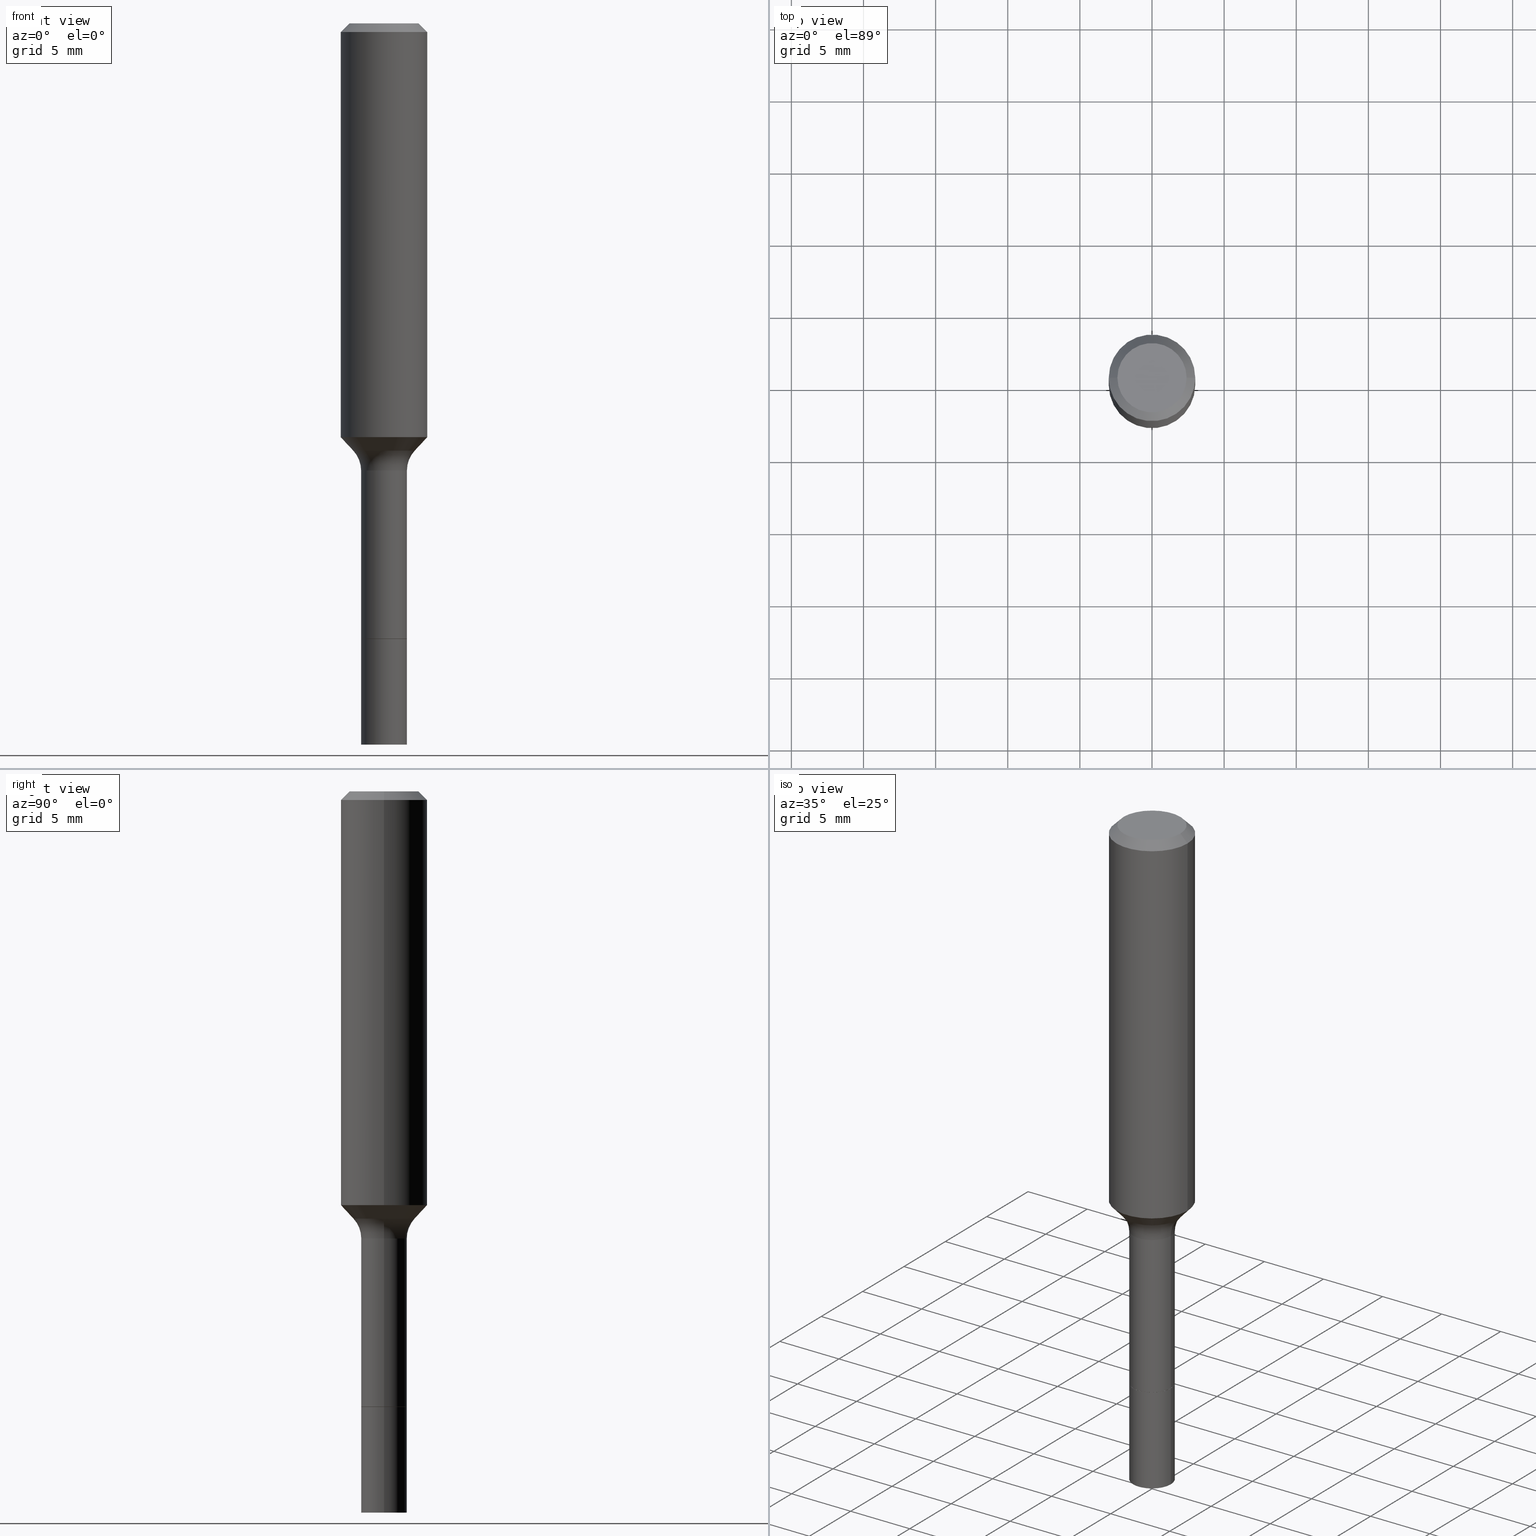
[diagram: canonical four-view strip — front | top / right | iso, engineering-drawing reading convention]
A machine part, canonical four-view strip (front | top / right | iso — engineering-drawing reading convention). The complete STEP part file that produces these views, byte-faithful:
ISO-10303-21;
HEADER;
FILE_DESCRIPTION (( 'STEP AP203' ),
    '1' );
FILE_NAME ('58488.STEP',
    '2025-04-01T15:23:31',
    ( '' ),
    ( '' ),
    'SwSTEP 2.0',
    'SolidWorks 2024',
    '' );
FILE_SCHEMA (( 'CONFIG_CONTROL_DESIGN' ));
ENDSEC;

DATA;
#1 = COORDINATED_UNIVERSAL_TIME_OFFSET ( 5, 0, .BEHIND. ) ;
#2 = VERTEX_POINT ( 'NONE', #5 ) ;
#3 = CIRCLE ( 'NONE', #434, 0.1180999999999999966 ) ;
#4 =( NAMED_UNIT ( * ) SI_UNIT ( $, .STERADIAN. ) SOLID_ANGLE_UNIT ( ) );
#5 = CARTESIAN_POINT ( 'NONE',  ( -0.06249999999999993755, -4.617685861137787747E-15, -1.220499999999999918 ) ) ;
#6 = APPROVAL_ROLE ( '' ) ;
#7 = CARTESIAN_POINT ( 'NONE',  ( 0.09447999999999998066, -7.704367267948738690E-16, -3.085620075131172158E-17 ) ) ;
#8 = DIRECTION ( 'NONE',  ( -2.445468806185136597E-29, 3.491481338843145583E-15, 1.000000000000000000 ) ) ;
#9 = ORIENTED_EDGE ( 'NONE', *, *, #430, .F. ) ;
#10 = ADVANCED_FACE ( 'NONE', ( #165 ), #402, .F. ) ;
#11 = CIRCLE ( 'NONE', #372, 0.07999999999999993228 ) ;
#12 = CIRCLE ( 'NONE', #496, 0.09447999999999998066 ) ;
#13 = DIRECTION ( 'NONE',  ( 0.7071067811865460184, -7.319954787623251312E-15, -0.7071067811865490160 ) ) ;
#14 = APPROVAL ( #481, 'UNSPECIFIED' ) ;
#15 = LINE ( 'NONE', #261, #397 ) ;
#16 = ADVANCED_FACE ( 'NONE', ( #247 ), #329, .T. ) ;
#17 = DIRECTION ( 'NONE',  ( -2.445468806185136597E-29, 3.491481338843145583E-15, 1.000000000000000000 ) ) ;
#18 = AXIS2_PLACEMENT_3D ( 'NONE', #362, #289, #367 ) ;
#19 = FACE_OUTER_BOUND ( 'NONE', #62, .T. ) ;
#20 = DIRECTION ( 'NONE',  ( 2.438088387897960049E-29, -3.491481338843145188E-15, -1.000000000000000000 ) ) ;
#21 = VERTEX_POINT ( 'NONE', #37 ) ;
#22 = ORIENTED_EDGE ( 'NONE', *, *, #59, .F. ) ;
#23 = EDGE_CURVE ( 'NONE', #445, #257, #469, .T. ) ;
#24 = CARTESIAN_POINT ( 'NONE',  ( 4.107164859987937107E-29, -5.863942908587062413E-15, -1.679499999999999993 ) ) ;
#25 = VECTOR ( 'NONE', #13, 39.37007874015748143 ) ;
#26 = EDGE_LOOP ( 'NONE', ( #466, #268 ) ) ;
#27 = CIRCLE ( 'NONE', #141, 0.06250000000000000000 ) ;
#28 = CC_DESIGN_PERSON_AND_ORGANIZATION_ASSIGNMENT ( #72, #201, ( #355 ) ) ;
#29 = ORIENTED_EDGE ( 'NONE', *, *, #137, .T. ) ;
#30 = ADVANCED_FACE ( 'NONE', ( #129 ), #324, .T. ) ;
#31 = DIRECTION ( 'NONE',  ( 1.000000000000000000, -6.982962677686268288E-15, 0.000000000000000000 ) ) ;
#32 = VERTEX_POINT ( 'NONE', #206 ) ;
#33 = EDGE_LOOP ( 'NONE', ( #9, #344, #193, #399 ) ) ;
#34 = CIRCLE ( 'NONE', #274, 0.06199999999999999956 ) ;
#35 = DIRECTION ( 'NONE',  ( -2.445468806185136597E-29, 3.491481338843145583E-15, 1.000000000000000000 ) ) ;
#36 = APPLICATION_PROTOCOL_DEFINITION ( 'international standard', 'config_control_design', 1994, #321 ) ;
#37 = CARTESIAN_POINT ( 'NONE',  ( 0.06250000000000000000, -6.300378075942454082E-15, -1.679499999999999993 ) ) ;
#38 = DATE_TIME_ROLE ( 'creation_date' ) ;
#39 = DIRECTION ( 'NONE',  ( -2.445468806185136597E-29, 3.491481338843145583E-15, 1.000000000000000000 ) ) ;
#40 = EDGE_CURVE ( 'NONE', #504, #225, #359, .T. ) ;
#41 = CARTESIAN_POINT ( 'NONE',  ( 0.06250000000000012490, -7.309416182868124954E-15, -1.968500000000000139 ) ) ;
#42 = ORIENTED_EDGE ( 'NONE', *, *, #398, .F. ) ;
#43 = CONICAL_SURFACE ( 'NONE', #168, 0.06199999999999999956, 0.7853981633975507526 ) ;
#44 =( GEOMETRIC_REPRESENTATION_CONTEXT ( 3 ) GLOBAL_UNCERTAINTY_ASSIGNED_CONTEXT ( ( #499 ) ) GLOBAL_UNIT_ASSIGNED_CONTEXT ( ( #80, #364, #4 ) ) REPRESENTATION_CONTEXT ( 'NONE', 'WORKASPACE' ) );
#45 = PERSON_AND_ORGANIZATION ( #425, #176 ) ;
#46 = CARTESIAN_POINT ( 'NONE',  ( 0.06199999999999999956, -6.296886594603611075E-15, -1.679499999999999993 ) ) ;
#47 = ADVANCED_FACE ( 'NONE', ( #483 ), #171, .T. ) ;
#48 = CYLINDRICAL_SURFACE ( 'NONE', #140, 0.06250000000000005551 ) ;
#49 = CARTESIAN_POINT ( 'NONE',  ( -0.1424999999999999600, -3.248829575599916941E-15, -1.220499999999999918 ) ) ;
#50 = ORIENTED_EDGE ( 'NONE', *, *, #234, .F. ) ;
#51 = CIRCLE ( 'NONE', #109, 0.08399170387046661634 ) ;
#52 = LINE ( 'NONE', #217, #449 ) ;
#53 = ADVANCED_FACE ( 'NONE', ( #485 ), #48, .T. ) ;
#54 = CARTESIAN_POINT ( 'NONE',  ( 0.06199999999999999956, -6.296886594603611075E-15, -1.679499999999999993 ) ) ;
#55 = DIRECTION ( 'NONE',  ( 1.000000000000000000, -6.982962677686269866E-15, 0.000000000000000000 ) ) ;
#56 = CIRCLE ( 'NONE', #252, 0.06249999999999993755 ) ;
#57 = DIRECTION ( 'NONE',  ( -1.000000000000000000, 6.982962677686266711E-15, 0.000000000000000000 ) ) ;
#58 = DIRECTION ( 'NONE',  ( 1.000000000000000000, -6.982962677686262766E-15, 0.000000000000000000 ) ) ;
#59 = EDGE_CURVE ( 'NONE', #271, #257, #405, .T. ) ;
#60 = EDGE_LOOP ( 'NONE', ( #353, #436, #273, #420 ) ) ;
#61 = DIRECTION ( 'NONE',  ( -2.445468806185136597E-29, 3.491481338843145583E-15, 1.000000000000000000 ) ) ;
#62 = EDGE_LOOP ( 'NONE', ( #357, #462, #302, #417 ) ) ;
#63 = AXIS2_PLACEMENT_3D ( 'NONE', #413, #299, #222 ) ;
#64 = ORIENTED_EDGE ( 'NONE', *, *, #127, .F. ) ;
#65 = PRODUCT_DEFINITION_FORMATION_WITH_SPECIFIED_SOURCE ( 'ANY', '', #216, .NOT_KNOWN. ) ;
#66 = EDGE_CURVE ( 'NONE', #225, #422, #371, .T. ) ;
#67 = FACE_OUTER_BOUND ( 'NONE', #280, .T. ) ;
#68 = VERTEX_POINT ( 'NONE', #7 ) ;
#69 = FACE_OUTER_BOUND ( 'NONE', #391, .T. ) ;
#70 = ORIENTED_EDGE ( 'NONE', *, *, #66, .F. ) ;
#71 = PERSON_AND_ORGANIZATION_ROLE ( 'classification_officer' ) ;
#72 = PERSON_AND_ORGANIZATION ( #425, #176 ) ;
#73 = CARTESIAN_POINT ( 'NONE',  ( -0.06199999999999999956, -5.420757185241689494E-15, -1.679499999999999993 ) ) ;
#74 = CONICAL_SURFACE ( 'NONE', #327, 0.08399170387046661634, 0.7504915783575603072 ) ;
#75 = LOCAL_TIME ( 11, 23, 31.00000000000000000, #361 ) ;
#76 = DIMENSIONAL_EXPONENTS ( 1.000000000000000000, 0.000000000000000000, 0.000000000000000000, 0.000000000000000000, 0.000000000000000000, 0.000000000000000000, 0.000000000000000000 ) ;
#77 = FACE_OUTER_BOUND ( 'NONE', #381, .T. ) ;
#78 = ADVANCED_FACE ( 'NONE', ( #172 ), #238, .T. ) ;
#79 = DIRECTION ( 'NONE',  ( 1.000000000000000000, -6.982962677686266711E-15, 4.876176775795936353E-29 ) ) ;
#80 =( CONVERSION_BASED_UNIT ( 'INCH', #368 ) LENGTH_UNIT ( ) NAMED_UNIT ( #76 ) );
#81 = CARTESIAN_POINT ( 'NONE',  ( 4.107164859987937107E-29, -5.863942908587062413E-15, -1.679499999999999993 ) ) ;
#82 = CALENDAR_DATE ( 2025, 1, 4 ) ;
#83 = PLANE ( 'NONE',  #121 ) ;
#84 = CARTESIAN_POINT ( 'NONE',  ( 4.107164859987937107E-29, -5.863942908587062413E-15, -1.679499999999999993 ) ) ;
#85 = ORIENTED_EDGE ( 'NONE', *, *, #518, .F. ) ;
#86 = CALENDAR_DATE ( 2025, 1, 4 ) ;
#87 = LOCAL_TIME ( 11, 23, 31.00000000000000000, #322 ) ;
#88 = CARTESIAN_POINT ( 'NONE',  ( 4.107164859987937107E-29, -5.863942908587062413E-15, -1.679499999999999993 ) ) ;
#89 = DIRECTION ( 'NONE',  ( -2.445468806185136597E-29, 3.491481338843145583E-15, 1.000000000000000000 ) ) ;
#90 = EDGE_CURVE ( 'NONE', #422, #21, #102, .T. ) ;
#91 = AXIS2_PLACEMENT_3D ( 'NONE', #177, #408, #343 ) ;
#92 = AXIS2_PLACEMENT_3D ( 'NONE', #404, #35, #152 ) ;
#93 = CARTESIAN_POINT ( 'NONE',  ( -0.09447999999999998066, 7.009847083995354710E-16, -3.085620075132147757E-17 ) ) ;
#94 = VERTEX_POINT ( 'NONE', #73 ) ;
#95 = CC_DESIGN_APPROVAL ( #264, ( #65 ) ) ;
#96 = CARTESIAN_POINT ( 'NONE',  ( 0.1180999999999999966, -9.071566814582237199E-16, -0.02362000000000014435 ) ) ;
#97 = ORIENTED_EDGE ( 'NONE', *, *, #66, .T. ) ;
#98 = FACE_OUTER_BOUND ( 'NONE', #311, .T. ) ;
#99 = EDGE_LOOP ( 'NONE', ( #426, #188, #143, #22 ) ) ;
#100 = EDGE_CURVE ( 'NONE', #21, #422, #303, .T. ) ;
#101 = AXIS2_PLACEMENT_3D ( 'NONE', #331, #126, #439 ) ;
#102 = CIRCLE ( 'NONE', #259, 0.06250000000000000000 ) ;
#103 = DIRECTION ( 'NONE',  ( 0.6819983600624974773, -2.208861293262464364E-15, 0.7313537016191714590 ) ) ;
#104 = ORIENTED_EDGE ( 'NONE', *, *, #117, .T. ) ;
#105 = DIRECTION ( 'NONE',  ( 1.000000000000000000, -6.982962677686270655E-15, 0.000000000000000000 ) ) ;
#106 = ORIENTED_EDGE ( 'NONE', *, *, #40, .T. ) ;
#107 = VERTEX_POINT ( 'NONE', #363 ) ;
#108 = DIRECTION ( 'NONE',  ( -0.7071067811865460184, 2.468850131082241283E-15, -0.7071067811865490160 ) ) ;
#109 = AXIS2_PLACEMENT_3D ( 'NONE', #352, #156, #31 ) ;
#110 = ORIENTED_EDGE ( 'NONE', *, *, #419, .F. ) ;
#111 = CC_DESIGN_PERSON_AND_ORGANIZATION_ASSIGNMENT ( #122, #71, ( #144 ) ) ;
#112 = DIRECTION ( 'NONE',  ( -2.445468806185136597E-29, 3.491481338843145583E-15, 1.000000000000000000 ) ) ;
#113 = ORIENTED_EDGE ( 'NONE', *, *, #278, .T. ) ;
#114 = LOCAL_TIME ( 11, 23, 31.00000000000000000, #437 ) ;
#115 = PERSON_AND_ORGANIZATION_ROLE ( 'design_supplier' ) ;
#116 = DIRECTION ( 'NONE',  ( -1.000000000000000000, 6.982962677686266711E-15, 0.000000000000000000 ) ) ;
#117 = EDGE_CURVE ( 'NONE', #445, #2, #167, .T. ) ;
#118 = CALENDAR_DATE ( 2025, 1, 4 ) ;
#119 = DIRECTION ( 'NONE',  ( 0.7071067811866199593, -2.468850131083015945E-15, 0.7071067811864750752 ) ) ;
#120 = AXIS2_PLACEMENT_3D ( 'NONE', #49, #497, #490 ) ;
#121 = AXIS2_PLACEMENT_3D ( 'NONE', #472, #253, #281 ) ;
#122 = PERSON_AND_ORGANIZATION ( #425, #176 ) ;
#123 = MANIFOLD_SOLID_BREP ( 'Body-Move/Copy2[2]', #356 ) ;
#124 = LINE ( 'NONE', #250, #387 ) ;
#125 = DIRECTION ( 'NONE',  ( -2.445468806185136597E-29, 3.491481338843145583E-15, 1.000000000000000000 ) ) ;
#126 = DIRECTION ( 'NONE',  ( -2.445468806185136597E-29, 3.491481338843145583E-15, 1.000000000000000000 ) ) ;
#127 = EDGE_CURVE ( 'NONE', #107, #32, #416, .T. ) ;
#128 = DIRECTION ( 'NONE',  ( 1.000000000000000000, -6.982962677686266711E-15, 4.876176775795935793E-29 ) ) ;
#129 = FACE_OUTER_BOUND ( 'NONE', #227, .T. ) ;
#130 = CC_DESIGN_PERSON_AND_ORGANIZATION_ASSIGNMENT ( #330, #441, ( #216 ) ) ;
#131 = AXIS2_PLACEMENT_3D ( 'NONE', #480, #210, #79 ) ;
#132 = APPROVAL_STATUS ( 'not_yet_approved' ) ;
#133 = DIRECTION ( 'NONE',  ( 1.000000000000000000, -6.982962677686269077E-15, 4.883557194083114022E-29 ) ) ;
#134 = CARTESIAN_POINT ( 'NONE',  ( 4.813905344975441835E-29, -6.872981015512731707E-15, -1.968500000000000139 ) ) ;
#135 = EDGE_LOOP ( 'NONE', ( #360, #104, #471, #190 ) ) ;
#136 = PRODUCT_DEFINITION_SHAPE ( 'NONE', 'NONE',  #355 ) ;
#137 = EDGE_CURVE ( 'NONE', #225, #504, #294, .T. ) ;
#138 = DIRECTION ( 'NONE',  ( -2.445468806185136597E-29, 3.491481338843145583E-15, 1.000000000000000000 ) ) ;
#139 = VERTEX_POINT ( 'NONE', #96 ) ;
#140 = AXIS2_PLACEMENT_3D ( 'NONE', #442, #212, #251 ) ;
#141 = AXIS2_PLACEMENT_3D ( 'NONE', #158, #112, #58 ) ;
#142 = CARTESIAN_POINT ( 'NONE',  ( -0.06249999999999996531, 4.440892098500623697E-16, -3.074334431409314362E-30 ) ) ;
#143 = ORIENTED_EDGE ( 'NONE', *, *, #440, .F. ) ;
#144 = SECURITY_CLASSIFICATION ( '', '', #161 ) ;
#145 = DIRECTION ( 'NONE',  ( 1.000000000000000000, -6.982962677686270655E-15, 0.000000000000000000 ) ) ;
#146 = CARTESIAN_POINT ( 'NONE',  ( 2.761823116367642009E-29, -3.943151451204084867E-15, -1.129363461673432267 ) ) ;
#147 = ORIENTED_EDGE ( 'NONE', *, *, #315, .T. ) ;
#148 = CC_DESIGN_DATE_AND_TIME_ASSIGNMENT ( #435, #38, ( #355 ) ) ;
#149 = AXIS2_PLACEMENT_3D ( 'NONE', #443, #326, #173 ) ;
#150 = DIRECTION ( 'NONE',  ( 1.000000000000000000, -6.982962677686269077E-15, 4.883557194083114022E-29 ) ) ;
#151 = ORIENTED_EDGE ( 'NONE', *, *, #228, .F. ) ;
#152 = DIRECTION ( 'NONE',  ( 1.000000000000000000, -6.982962677686268288E-15, 0.000000000000000000 ) ) ;
#153 = EDGE_CURVE ( 'NONE', #384, #429, #175, .T. ) ;
#154 = LINE ( 'NONE', #347, #286 ) ;
#155 = ORIENTED_EDGE ( 'NONE', *, *, #234, .T. ) ;
#156 = DIRECTION ( 'NONE',  ( -2.445468806185136597E-29, 3.491481338843145583E-15, 1.000000000000000000 ) ) ;
#157 = ORIENTED_EDGE ( 'NONE', *, *, #40, .F. ) ;
#158 = CARTESIAN_POINT ( 'NONE',  ( 4.105942125584844306E-29, -5.862197167917641698E-15, -1.679000000000000048 ) ) ;
#159 = CIRCLE ( 'NONE', #341, 0.1180999999999999966 ) ;
#160 = ORIENTED_EDGE ( 'NONE', *, *, #512, .T. ) ;
#161 = SECURITY_CLASSIFICATION_LEVEL ( 'unclassified' ) ;
#162 = EDGE_LOOP ( 'NONE', ( #375, #348, #346, #350 ) ) ;
#163 = CC_DESIGN_APPROVAL ( #14, ( #144 ) ) ;
#164 = EDGE_CURVE ( 'NONE', #68, #139, #258, .T. ) ;
#165 = FACE_OUTER_BOUND ( 'NONE', #510, .T. ) ;
#166 = DIRECTION ( 'NONE',  ( 1.000000000000000000, 0.000000000000000000, 0.000000000000000000 ) ) ;
#167 = LINE ( 'NONE', #142, #444 ) ;
#168 = AXIS2_PLACEMENT_3D ( 'NONE', #88, #305, #145 ) ;
#169 = APPROVAL_DATE_TIME ( #296, #264 ) ;
#170 = ADVANCED_FACE ( 'NONE', ( #19 ), #221, .F. ) ;
#171 = CYLINDRICAL_SURFACE ( 'NONE', #101, 0.06249999999999996531 ) ;
#172 = FACE_OUTER_BOUND ( 'NONE', #60, .T. ) ;
#173 = DIRECTION ( 'NONE',  ( 1.000000000000000000, -6.982962677686269866E-15, 0.000000000000000000 ) ) ;
#174 = CARTESIAN_POINT ( 'NONE',  ( 5.776197320209328408E-31, -8.246878922347560526E-17, -0.02362000000000014435 ) ) ;
#175 = CIRCLE ( 'NONE', #63, 0.1181000000000001354 ) ;
#176 = ORGANIZATION ( 'UNSPECIFIED', 'UNSPECIFIED', '' ) ;
#177 = CARTESIAN_POINT ( 'NONE',  ( 4.107164859987937107E-29, -5.863942908587062413E-15, -1.679499999999999993 ) ) ;
#178 = ADVANCED_FACE ( 'NONE', ( #378 ), #448, .F. ) ;
#179 = CC_DESIGN_SECURITY_CLASSIFICATION ( #144, ( #65 ) ) ;
#180 = FACE_OUTER_BOUND ( 'NONE', #162, .T. ) ;
#181 = PRODUCT_RELATED_PRODUCT_CATEGORY ( 'detail', '', ( #216 ) ) ;
#182 = CARTESIAN_POINT ( 'NONE',  ( 0.06250000000000000000, -6.298632335273033367E-15, -1.679000000000000048 ) ) ;
#183 = AXIS2_PLACEMENT_3D ( 'NONE', #189, #61, #230 ) ;
#184 = DIRECTION ( 'NONE',  ( -2.445468806185136597E-29, 3.491481338843145583E-15, 1.000000000000000000 ) ) ;
#185 = ADVANCED_FACE ( 'NONE', ( #180 ), #74, .T. ) ;
#186 = ORIENTED_EDGE ( 'NONE', *, *, #117, .F. ) ;
#187 = DIRECTION ( 'NONE',  ( -2.445468806185136597E-29, 3.491481338843145583E-15, 1.000000000000000000 ) ) ;
#188 = ORIENTED_EDGE ( 'NONE', *, *, #430, .T. ) ;
#189 = CARTESIAN_POINT ( 'NONE',  ( 0.000000000000000000, 0.000000000000000000, 0.000000000000000000 ) ) ;
#190 = ORIENTED_EDGE ( 'NONE', *, *, #495, .F. ) ;
#191 = AXIS2_PLACEMENT_3D ( 'NONE', #450, #20, #340 ) ;
#192 = CARTESIAN_POINT ( 'NONE',  ( 0.1181000000000001354, -4.767839343438834707E-15, -1.129363461673432267 ) ) ;
#193 = ORIENTED_EDGE ( 'NONE', *, *, #59, .T. ) ;
#194 = PLANE ( 'NONE',  #385 ) ;
#195 = ORIENTED_EDGE ( 'NONE', *, *, #90, .F. ) ;
#196 = CYLINDRICAL_SURFACE ( 'NONE', #183, 0.1181000000000000660 ) ;
#197 = ORIENTED_EDGE ( 'NONE', *, *, #137, .F. ) ;
#198 = VECTOR ( 'NONE', #119, 39.37007874015748143 ) ;
#199 = EDGE_CURVE ( 'NONE', #94, #271, #266, .T. ) ;
#200 = ORIENTED_EDGE ( 'NONE', *, *, #153, .T. ) ;
#201 = PERSON_AND_ORGANIZATION_ROLE ( 'creator' ) ;
#202 = DIRECTION ( 'NONE',  ( 1.000000000000000000, -6.982962677686262766E-15, 0.000000000000000000 ) ) ;
#203 = CARTESIAN_POINT ( 'NONE',  ( 7.545787641473140628E-46, -1.077338491108201769E-31, -3.085620075131671975E-17 ) ) ;
#204 = DIRECTION ( 'NONE',  ( 1.000000000000000000, -6.982962677686262766E-15, 0.000000000000000000 ) ) ;
#205 = CARTESIAN_POINT ( 'NONE',  ( 0.000000000000000000, 0.000000000000000000, 0.000000000000000000 ) ) ;
#206 = CARTESIAN_POINT ( 'NONE',  ( -0.08399170387046649144, -3.474061259782937489E-15, -1.165940131195000173 ) ) ;
#207 = AXIS2_PLACEMENT_3D ( 'NONE', #134, #89, #453 ) ;
#208 = VECTOR ( 'NONE', #108, 39.37007874015748143 ) ;
#209 = APPROVAL_STATUS ( 'not_yet_approved' ) ;
#210 = DIRECTION ( 'NONE',  ( -2.445468806185136597E-29, 3.491481338843145583E-15, 1.000000000000000000 ) ) ;
#211 = DIRECTION ( 'NONE',  ( 0.000000000000000000, 0.000000000000000000, 1.000000000000000000 ) ) ;
#212 = DIRECTION ( 'NONE',  ( -2.445468806185136597E-29, 3.491481338843145583E-15, 1.000000000000000000 ) ) ;
#213 = DIRECTION ( 'NONE',  ( -2.445468806185136877E-29, 3.491481338843145188E-15, 1.000000000000000000 ) ) ;
#214 = VERTEX_POINT ( 'NONE', #336 ) ;
#215 = AXIS2_PLACEMENT_3D ( 'NONE', #174, #332, #116 ) ;
#216 = PRODUCT ( '58488', '58488', '', ( #401 ) ) ;
#217 = CARTESIAN_POINT ( 'NONE',  ( 0.1181000000000000660, -8.246878922347485584E-16, 5.758764772215003944E-30 ) ) ;
#218 = CC_DESIGN_DATE_AND_TIME_ASSIGNMENT ( #358, #283, ( #144 ) ) ;
#219 = CARTESIAN_POINT ( 'NONE',  ( 5.776197320209328408E-31, -8.246878922347560526E-17, -0.02362000000000014435 ) ) ;
#220 = LINE ( 'NONE', #306, #285 ) ;
#221 = TOROIDAL_SURFACE ( 'NONE', #493, 0.1424999999999999600, 0.07999999999999993228 ) ;
#222 = DIRECTION ( 'NONE',  ( 1.000000000000000000, -6.982962677686269077E-15, 0.000000000000000000 ) ) ;
#223 = ORIENTED_EDGE ( 'NONE', *, *, #255, .F. ) ;
#224 = CARTESIAN_POINT ( 'NONE',  ( 0.1424999999999999600, -5.256425155628351561E-15, -1.220499999999999918 ) ) ;
#225 = VERTEX_POINT ( 'NONE', #297 ) ;
#226 = FACE_OUTER_BOUND ( 'NONE', #33, .T. ) ;
#227 = EDGE_LOOP ( 'NONE', ( #382, #513, #389, #50 ) ) ;
#228 = EDGE_CURVE ( 'NONE', #32, #2, #503, .T. ) ;
#229 = AXIS2_PLACEMENT_3D ( 'NONE', #146, #276, #310 ) ;
#230 = DIRECTION ( 'NONE',  ( 1.000000000000000000, -6.982962677686266711E-15, 4.876176775795936353E-29 ) ) ;
#231 = EDGE_LOOP ( 'NONE', ( #106, #97, #409, #316 ) ) ;
#232 = CARTESIAN_POINT ( 'NONE',  ( 4.107164859987937107E-29, -5.863942908587062413E-15, -1.679499999999999993 ) ) ;
#233 = ORIENTED_EDGE ( 'NONE', *, *, #244, .T. ) ;
#234 = EDGE_CURVE ( 'NONE', #429, #139, #52, .T. ) ;
#235 = CARTESIAN_POINT ( 'NONE',  ( 5.776197320209328408E-31, -8.246878922347560526E-17, -0.02362000000000014435 ) ) ;
#236 = ORIENTED_EDGE ( 'NONE', *, *, #100, .T. ) ;
#237 = PERSON_AND_ORGANIZATION ( #425, #176 ) ;
#238 = CONICAL_SURFACE ( 'NONE', #215, 0.1180999999999999966, 0.7853981633974461696 ) ;
#239 = CIRCLE ( 'NONE', #149, 0.06249999999999993755 ) ;
#240 = DIRECTION ( 'NONE',  ( -2.445468806185136597E-29, 3.491481338843145583E-15, 1.000000000000000000 ) ) ;
#241 = CLOSED_SHELL ( 'NONE', ( #53, #489, #16, #325 ) ) ;
#242 = APPROVAL_ROLE ( '' ) ;
#243 = EDGE_LOOP ( 'NONE', ( #70, #29, #113, #195 ) ) ;
#244 = EDGE_CURVE ( 'NONE', #32, #384, #15, .T. ) ;
#245 = SHAPE_DEFINITION_REPRESENTATION ( #136, #291 ) ;
#246 = CARTESIAN_POINT ( 'NONE',  ( 0.000000000000000000, 0.000000000000000000, 0.000000000000000000 ) ) ;
#247 = FACE_OUTER_BOUND ( 'NONE', #243, .T. ) ;
#248 = CC_DESIGN_PERSON_AND_ORGANIZATION_ASSIGNMENT ( #514, #115, ( #65 ) ) ;
#249 = DATE_AND_TIME ( #317, #114 ) ;
#250 = CARTESIAN_POINT ( 'NONE',  ( 0.06249999999999996531, -4.364351673553914229E-16, 3.047610484872458119E-30 ) ) ;
#251 = DIRECTION ( 'NONE',  ( 1.000000000000000000, -6.982962677686272233E-15, 0.000000000000000000 ) ) ;
#252 = AXIS2_PLACEMENT_3D ( 'NONE', #265, #138, #55 ) ;
#253 = DIRECTION ( 'NONE',  ( 2.438088387897960049E-29, -3.491481338843145188E-15, -1.000000000000000000 ) ) ;
#254 = DIRECTION ( 'NONE',  ( 1.000000000000000000, -6.982962677686265922E-15, 4.876176775795935793E-29 ) ) ;
#255 = EDGE_CURVE ( 'NONE', #384, #515, #494, .T. ) ;
#256 = DIRECTION ( 'NONE',  ( 1.000000000000000000, -6.982962677686268288E-15, 0.000000000000000000 ) ) ;
#257 = VERTEX_POINT ( 'NONE', #182 ) ;
#258 = LINE ( 'NONE', #455, #25 ) ;
#259 = AXIS2_PLACEMENT_3D ( 'NONE', #282, #287, #432 ) ;
#260 = LOCAL_TIME ( 11, 23, 31.00000000000000000, #1 ) ;
#261 = CARTESIAN_POINT ( 'NONE',  ( -0.08399170387046661634, -3.474061259782936306E-15, -1.165940131195000173 ) ) ;
#262 = ADVANCED_FACE ( 'NONE', ( #492 ), #43, .T. ) ;
#263 = ORIENTED_EDGE ( 'NONE', *, *, #199, .F. ) ;
#264 = APPROVAL ( #132, 'UNSPECIFIED' ) ;
#265 = CARTESIAN_POINT ( 'NONE',  ( 2.984694677948959472E-29, -4.261352974058059028E-15, -1.220499999999999918 ) ) ;
#266 = CIRCLE ( 'NONE', #91, 0.06199999999999999956 ) ;
#267 = CARTESIAN_POINT ( 'NONE',  ( -0.06250000000000000000, -5.924372752199834838E-15, -1.679499999999999993 ) ) ;
#268 = ORIENTED_EDGE ( 'NONE', *, *, #518, .T. ) ;
#269 = DIRECTION ( 'NONE',  ( 1.000000000000000000, -6.982962677686266711E-15, 0.000000000000000000 ) ) ;
#270 = EDGE_CURVE ( 'NONE', #2, #214, #56, .T. ) ;
#271 = VERTEX_POINT ( 'NONE', #54 ) ;
#272 = DIRECTION ( 'NONE',  ( 1.000000000000000000, -6.982962677686267499E-15, 4.875432709231658792E-29 ) ) ;
#273 = ORIENTED_EDGE ( 'NONE', *, *, #419, .T. ) ;
#274 = AXIS2_PLACEMENT_3D ( 'NONE', #24, #393, #105 ) ;
#275 = CIRCLE ( 'NONE', #308, 0.09447999999999998066 ) ;
#276 = DIRECTION ( 'NONE',  ( -2.445468806185136597E-29, 3.491481338843145583E-15, 1.000000000000000000 ) ) ;
#277 = VERTEX_POINT ( 'NONE', #93 ) ;
#278 = EDGE_CURVE ( 'NONE', #504, #21, #220, .T. ) ;
#279 = DIRECTION ( 'NONE',  ( -2.445468806185136597E-29, 3.491481338843145583E-15, 1.000000000000000000 ) ) ;
#280 = EDGE_LOOP ( 'NONE', ( #223, #200, #155, #452 ) ) ;
#281 = DIRECTION ( 'NONE',  ( -1.000000000000000000, 6.982962677686265922E-15, -4.876176775795935793E-29 ) ) ;
#282 = CARTESIAN_POINT ( 'NONE',  ( 4.107164859987937107E-29, -5.863942908587062413E-15, -1.679499999999999993 ) ) ;
#283 = DATE_TIME_ROLE ( 'classification_date' ) ;
#284 = DIRECTION ( 'NONE',  ( -2.445468806185136597E-29, 3.491481338843145583E-15, 1.000000000000000000 ) ) ;
#285 = VECTOR ( 'NONE', #412, 39.37007874015748143 ) ;
#286 = VECTOR ( 'NONE', #103, 39.37007874015748143 ) ;
#287 = DIRECTION ( 'NONE',  ( -2.445468806185136597E-29, 3.491481338843145583E-15, 1.000000000000000000 ) ) ;
#288 = CARTESIAN_POINT ( 'NONE',  ( -0.1180999999999999966, -1.173659149281100979E-15, -0.02362000000000014435 ) ) ;
#289 = DIRECTION ( 'NONE',  ( -2.445468806185136597E-29, 3.491481338843145583E-15, 1.000000000000000000 ) ) ;
#290 = DIRECTION ( 'NONE',  ( 1.000000000000000000, -6.982962677686272233E-15, 0.000000000000000000 ) ) ;
#291 = ADVANCED_BREP_SHAPE_REPRESENTATION ( '58488', ( #463, #123, #451 ), #44 ) ;
#292 = FACE_OUTER_BOUND ( 'NONE', #135, .T. ) ;
#293 = ORIENTED_EDGE ( 'NONE', *, *, #90, .T. ) ;
#294 = CIRCLE ( 'NONE', #207, 0.06250000000000012490 ) ;
#295 = ADVANCED_FACE ( 'NONE', ( #98 ), #379, .T. ) ;
#296 = DATE_AND_TIME ( #86, #390 ) ;
#297 = CARTESIAN_POINT ( 'NONE',  ( -0.06250000000000012490, -5.924372752199833260E-15, -1.968500000000000139 ) ) ;
#298 = APPLICATION_CONTEXT ( 'configuration controlled 3d designs of mechanical parts and assemblies' ) ;
#299 = DIRECTION ( 'NONE',  ( -2.445468806185136597E-29, 3.491481338843145583E-15, 1.000000000000000000 ) ) ;
#300 = DIRECTION ( 'NONE',  ( -2.445468806185136597E-29, 3.491481338843145583E-15, 1.000000000000000000 ) ) ;
#301 = ADVANCED_FACE ( 'NONE', ( #447 ), #410, .F. ) ;
#302 = ORIENTED_EDGE ( 'NONE', *, *, #270, .T. ) ;
#303 = CIRCLE ( 'NONE', #335, 0.06250000000000000000 ) ;
#304 = CC_DESIGN_APPROVAL ( #339, ( #355 ) ) ;
#305 = DIRECTION ( 'NONE',  ( -2.445468806185136597E-29, 3.491481338843145583E-15, 1.000000000000000000 ) ) ;
#306 = CARTESIAN_POINT ( 'NONE',  ( 0.06250000000000005551, -6.300378075942454871E-15, -1.679499999999999993 ) ) ;
#307 = AXIS2_PLACEMENT_3D ( 'NONE', #373, #17, #256 ) ;
#308 = AXIS2_PLACEMENT_3D ( 'NONE', #203, #284, #323 ) ;
#309 = EDGE_CURVE ( 'NONE', #271, #94, #34, .T. ) ;
#310 = DIRECTION ( 'NONE',  ( 1.000000000000000000, -6.982962677686269077E-15, 0.000000000000000000 ) ) ;
#311 = EDGE_LOOP ( 'NONE', ( #85, #459, #147, #110 ) ) ;
#312 = FACE_OUTER_BOUND ( 'NONE', #313, .T. ) ;
#313 = EDGE_LOOP ( 'NONE', ( #236, #293 ) ) ;
#314 = DIRECTION ( 'NONE',  ( -2.445468806185136597E-29, 3.491481338843145583E-15, 1.000000000000000000 ) ) ;
#315 = EDGE_CURVE ( 'NONE', #139, #515, #159, .T. ) ;
#316 = ORIENTED_EDGE ( 'NONE', *, *, #278, .F. ) ;
#317 = CALENDAR_DATE ( 2025, 1, 4 ) ;
#318 = DIRECTION ( 'NONE',  ( -2.445468806185136597E-29, 3.491481338843145583E-15, 1.000000000000000000 ) ) ;
#319 = ORIENTED_EDGE ( 'NONE', *, *, #337, .T. ) ;
#320 = ORIENTED_EDGE ( 'NONE', *, *, #495, .T. ) ;
#321 = APPLICATION_CONTEXT ( 'configuration controlled 3d designs of mechanical parts and assemblies' ) ;
#322 = COORDINATED_UNIVERSAL_TIME_OFFSET ( 5, 0, .BEHIND. ) ;
#323 = DIRECTION ( 'NONE',  ( 1.000000000000000000, -6.982962677686267499E-15, 4.875432709231658792E-29 ) ) ;
#324 = CYLINDRICAL_SURFACE ( 'NONE', #131, 0.1181000000000000660 ) ;
#325 = ADVANCED_FACE ( 'NONE', ( #312 ), #194, .F. ) ;
#326 = DIRECTION ( 'NONE',  ( -2.445468806185136597E-29, 3.491481338843145583E-15, 1.000000000000000000 ) ) ;
#327 = AXIS2_PLACEMENT_3D ( 'NONE', #411, #184, #334 ) ;
#328 = CONICAL_SURFACE ( 'NONE', #92, 0.08399170387046661634, 0.7504915783575603072 ) ;
#329 = CYLINDRICAL_SURFACE ( 'NONE', #423, 0.06250000000000005551 ) ;
#330 = PERSON_AND_ORGANIZATION ( #425, #176 ) ;
#331 = CARTESIAN_POINT ( 'NONE',  ( 0.000000000000000000, 0.000000000000000000, 0.000000000000000000 ) ) ;
#332 = DIRECTION ( 'NONE',  ( 2.445468806185136597E-29, -3.491481338843145583E-15, -1.000000000000000000 ) ) ;
#333 = APPROVAL_ROLE ( '' ) ;
#334 = DIRECTION ( 'NONE',  ( 1.000000000000000000, -6.982962677686268288E-15, 0.000000000000000000 ) ) ;
#335 = AXIS2_PLACEMENT_3D ( 'NONE', #400, #39, #204 ) ;
#336 = CARTESIAN_POINT ( 'NONE',  ( 0.06249999999999993755, -4.697788141413450697E-15, -1.220499999999999918 ) ) ;
#337 = EDGE_CURVE ( 'NONE', #107, #214, #11, .T. ) ;
#338 = DIRECTION ( 'NONE',  ( -0.6819983600624974773, 7.399397606724283421E-15, 0.7313537016191714590 ) ) ;
#339 = APPROVAL ( #209, 'UNSPECIFIED' ) ;
#340 = DIRECTION ( 'NONE',  ( -1.000000000000000000, 6.982962677686265922E-15, -4.876176775795935793E-29 ) ) ;
#341 = AXIS2_PLACEMENT_3D ( 'NONE', #235, #318, #269 ) ;
#342 = VECTOR ( 'NONE', #511, 39.37007874015748143 ) ;
#343 = DIRECTION ( 'NONE',  ( 1.000000000000000000, -6.982962677686270655E-15, 0.000000000000000000 ) ) ;
#344 = ORIENTED_EDGE ( 'NONE', *, *, #199, .T. ) ;
#345 = DIRECTION ( 'NONE',  ( -1.000000000000000000, 6.982962677686265922E-15, -4.876176775795935793E-29 ) ) ;
#346 = ORIENTED_EDGE ( 'NONE', *, *, #414, .T. ) ;
#347 = CARTESIAN_POINT ( 'NONE',  ( 0.08399170387046661634, -4.657369143638417737E-15, -1.165940131195000173 ) ) ;
#348 = ORIENTED_EDGE ( 'NONE', *, *, #351, .T. ) ;
#349 = DIRECTION ( 'NONE',  ( -2.445468806185136597E-29, 3.491481338843145583E-15, 1.000000000000000000 ) ) ;
#350 = ORIENTED_EDGE ( 'NONE', *, *, #153, .F. ) ;
#351 = EDGE_CURVE ( 'NONE', #32, #107, #51, .T. ) ;
#352 = CARTESIAN_POINT ( 'NONE',  ( 2.851270220716778580E-29, -4.070858210275671756E-15, -1.165940131195000173 ) ) ;
#353 = ORIENTED_EDGE ( 'NONE', *, *, #164, .F. ) ;
#354 = CARTESIAN_POINT ( 'NONE',  ( -0.06199999999999999956, -5.423406412415799906E-15, -1.679499999999999993 ) ) ;
#355 = PRODUCT_DEFINITION ( 'UNKNOWN', '', #65, #406 ) ;
#356 = CLOSED_SHELL ( 'NONE', ( #262, #295, #30, #479, #170, #506, #47, #301, #185, #369, #78, #178, #10, #386 ) ) ;
#357 = ORIENTED_EDGE ( 'NONE', *, *, #351, .F. ) ;
#358 = DATE_AND_TIME ( #82, #87 ) ;
#359 = CIRCLE ( 'NONE', #18, 0.06250000000000012490 ) ;
#360 = ORIENTED_EDGE ( 'NONE', *, *, #440, .T. ) ;
#361 = COORDINATED_UNIVERSAL_TIME_OFFSET ( 5, 0, .BEHIND. ) ;
#362 = CARTESIAN_POINT ( 'NONE',  ( 4.813905344975441835E-29, -6.872981015512731707E-15, -1.968500000000000139 ) ) ;
#363 = CARTESIAN_POINT ( 'NONE',  ( 0.08399170387046649144, -4.657369143638415371E-15, -1.165940131195000173 ) ) ;
#364 =( NAMED_UNIT ( * ) PLANE_ANGLE_UNIT ( ) SI_UNIT ( $, .RADIAN. ) );
#365 = VECTOR ( 'NONE', #370, 39.37007874015748143 ) ;
#366 = APPROVAL_PERSON_ORGANIZATION ( #486, #264, #333 ) ;
#367 = DIRECTION ( 'NONE',  ( 1.000000000000000000, -6.982962677686264344E-15, 0.000000000000000000 ) ) ;
#368 = LENGTH_MEASURE_WITH_UNIT ( LENGTH_MEASURE( 0.02539999999999999897 ), #516 );
#369 = ADVANCED_FACE ( 'NONE', ( #67 ), #196, .T. ) ;
#370 = DIRECTION ( 'NONE',  ( -2.445468806185136877E-29, 3.491481338843145188E-15, 1.000000000000000000 ) ) ;
#371 = LINE ( 'NONE', #517, #365 ) ;
#372 = AXIS2_PLACEMENT_3D ( 'NONE', #224, #418, #421 ) ;
#373 = CARTESIAN_POINT ( 'NONE',  ( 2.851270220716778580E-29, -4.070858210275671756E-15, -1.165940131195000173 ) ) ;
#374 = CONICAL_SURFACE ( 'NONE', #505, 0.06199999999999999956, 0.7853981633975507526 ) ;
#375 = ORIENTED_EDGE ( 'NONE', *, *, #244, .F. ) ;
#376 = DIRECTION ( 'NONE',  ( -2.445468806185136877E-29, 3.491481338843145188E-15, 1.000000000000000000 ) ) ;
#377 = CARTESIAN_POINT ( 'NONE',  ( -0.1181000000000000660, 8.391509709326787887E-16, -5.809262341591047287E-30 ) ) ;
#378 = FACE_OUTER_BOUND ( 'NONE', #26, .T. ) ;
#379 = CONICAL_SURFACE ( 'NONE', #433, 0.1180999999999999966, 0.7853981633974461696 ) ;
#380 = CARTESIAN_POINT ( 'NONE',  ( 2.984694677948959472E-29, -4.261352974058059028E-15, -1.220499999999999918 ) ) ;
#381 = EDGE_LOOP ( 'NONE', ( #157, #197 ) ) ;
#382 = ORIENTED_EDGE ( 'NONE', *, *, #398, .T. ) ;
#383 = LINE ( 'NONE', #509, #208 ) ;
#384 = VERTEX_POINT ( 'NONE', #500 ) ;
#385 = AXIS2_PLACEMENT_3D ( 'NONE', #467, #457, #345 ) ;
#386 = ADVANCED_FACE ( 'NONE', ( #226 ), #374, .T. ) ;
#387 = VECTOR ( 'NONE', #482, 39.37007874015748143 ) ;
#388 = CARTESIAN_POINT ( 'NONE',  ( 5.776197320209328408E-31, -8.246878922347560526E-17, -0.02362000000000014435 ) ) ;
#389 = ORIENTED_EDGE ( 'NONE', *, *, #315, .F. ) ;
#390 = LOCAL_TIME ( 11, 23, 31.00000000000000000, #446 ) ;
#391 = EDGE_LOOP ( 'NONE', ( #468, #233, #42, #456 ) ) ;
#392 = AXIS2_PLACEMENT_3D ( 'NONE', #84, #473, #254 ) ;
#393 = DIRECTION ( 'NONE',  ( -2.445468806185136597E-29, 3.491481338843145583E-15, 1.000000000000000000 ) ) ;
#394 = ORIENTED_EDGE ( 'NONE', *, *, #309, .F. ) ;
#395 = VECTOR ( 'NONE', #488, 39.37007874015748143 ) ;
#396 = PERSON_AND_ORGANIZATION ( #425, #176 ) ;
#397 = VECTOR ( 'NONE', #338, 39.37007874015748143 ) ;
#398 = EDGE_CURVE ( 'NONE', #429, #384, #460, .T. ) ;
#399 = ORIENTED_EDGE ( 'NONE', *, *, #23, .F. ) ;
#400 = CARTESIAN_POINT ( 'NONE',  ( 4.107164859987937107E-29, -5.863942908587062413E-15, -1.679499999999999993 ) ) ;
#401 = MECHANICAL_CONTEXT ( 'NONE', #298, 'mechanical' ) ;
#402 = PLANE ( 'NONE',  #392 ) ;
#403 = APPROVAL_DATE_TIME ( #249, #14 ) ;
#404 = CARTESIAN_POINT ( 'NONE',  ( 2.851270220716778580E-29, -4.070858210275671756E-15, -1.165940131195000173 ) ) ;
#405 = LINE ( 'NONE', #46, #198 ) ;
#406 = DESIGN_CONTEXT ( 'detailed design', #321, 'design' ) ;
#407 = EDGE_LOOP ( 'NONE', ( #186, #491, #320, #508 ) ) ;
#408 = DIRECTION ( 'NONE',  ( -2.445468806185136597E-29, 3.491481338843145583E-15, 1.000000000000000000 ) ) ;
#409 = ORIENTED_EDGE ( 'NONE', *, *, #100, .F. ) ;
#410 = TOROIDAL_SURFACE ( 'NONE', #458, 0.1424999999999999600, 0.07999999999999993228 ) ;
#411 = CARTESIAN_POINT ( 'NONE',  ( 2.851270220716778580E-29, -4.070858210275671756E-15, -1.165940131195000173 ) ) ;
#412 = DIRECTION ( 'NONE',  ( -2.445468806185136877E-29, 3.491481338843145188E-15, 1.000000000000000000 ) ) ;
#413 = CARTESIAN_POINT ( 'NONE',  ( 2.761823116367642009E-29, -3.943151451204084867E-15, -1.129363461673432267 ) ) ;
#414 = EDGE_CURVE ( 'NONE', #107, #429, #154, .T. ) ;
#415 = DIRECTION ( 'NONE',  ( 2.445468806185136597E-29, -3.491481338843145583E-15, -1.000000000000000000 ) ) ;
#416 = CIRCLE ( 'NONE', #307, 0.08399170387046661634 ) ;
#417 = ORIENTED_EDGE ( 'NONE', *, *, #337, .F. ) ;
#418 = DIRECTION ( 'NONE',  ( -6.982962677686266711E-15, -1.000000000000000000, 3.491481338843145583E-15 ) ) ;
#419 = EDGE_CURVE ( 'NONE', #277, #515, #383, .T. ) ;
#420 = ORIENTED_EDGE ( 'NONE', *, *, #465, .T. ) ;
#421 = DIRECTION ( 'NONE',  ( 1.000000000000000000, -6.982962677686265133E-15, 0.000000000000000000 ) ) ;
#422 = VERTEX_POINT ( 'NONE', #267 ) ;
#423 = AXIS2_PLACEMENT_3D ( 'NONE', #81, #240, #290 ) ;
#424 = AXIS2_PLACEMENT_3D ( 'NONE', #205, #8, #128 ) ;
#425 = PERSON ( 'UNSPECIFIED', 'UNSPECIFIED', 'UNSPECIFIED', ('UNSPECIFIED'), ('UNSPECIFIED'), ('UNSPECIFIED') ) ;
#426 = ORIENTED_EDGE ( 'NONE', *, *, #309, .T. ) ;
#427 = APPROVAL_PERSON_ORGANIZATION ( #237, #14, #242 ) ;
#428 = DIRECTION ( 'NONE',  ( 1.000000000000000000, -6.982962677686266711E-15, 0.000000000000000000 ) ) ;
#429 = VERTEX_POINT ( 'NONE', #192 ) ;
#430 = EDGE_CURVE ( 'NONE', #94, #445, #507, .T. ) ;
#431 = DATE_AND_TIME ( #484, #260 ) ;
#432 = DIRECTION ( 'NONE',  ( 1.000000000000000000, -6.982962677686262766E-15, 0.000000000000000000 ) ) ;
#433 = AXIS2_PLACEMENT_3D ( 'NONE', #219, #415, #57 ) ;
#434 = AXIS2_PLACEMENT_3D ( 'NONE', #388, #279, #428 ) ;
#435 = DATE_AND_TIME ( #118, #75 ) ;
#436 = ORIENTED_EDGE ( 'NONE', *, *, #454, .F. ) ;
#437 = COORDINATED_UNIVERSAL_TIME_OFFSET ( 5, 0, .BEHIND. ) ;
#438 = CYLINDRICAL_SURFACE ( 'NONE', #424, 0.06249999999999996531 ) ;
#439 = DIRECTION ( 'NONE',  ( 1.000000000000000000, -6.982962677686266711E-15, 4.876176775795935793E-29 ) ) ;
#440 = EDGE_CURVE ( 'NONE', #257, #445, #27, .T. ) ;
#441 = PERSON_AND_ORGANIZATION_ROLE ( 'design_owner' ) ;
#442 = CARTESIAN_POINT ( 'NONE',  ( 4.107164859987937107E-29, -5.863942908587062413E-15, -1.679499999999999993 ) ) ;
#443 = CARTESIAN_POINT ( 'NONE',  ( 2.984694677948959472E-29, -4.261352974058059028E-15, -1.220499999999999918 ) ) ;
#444 = VECTOR ( 'NONE', #213, 39.37007874015748143 ) ;
#445 = VERTEX_POINT ( 'NONE', #502 ) ;
#446 = COORDINATED_UNIVERSAL_TIME_OFFSET ( 5, 0, .BEHIND. ) ;
#447 = FACE_OUTER_BOUND ( 'NONE', #501, .T. ) ;
#448 = PLANE ( 'NONE',  #191 ) ;
#449 = VECTOR ( 'NONE', #376, 39.37007874015748143 ) ;
#450 = CARTESIAN_POINT ( 'NONE',  ( 3.772893820736570314E-46, -5.386692455541008845E-32, -1.542810037565835988E-17 ) ) ;
#451 = AXIS2_PLACEMENT_3D ( 'NONE', #246, #211, #166 ) ;
#452 = ORIENTED_EDGE ( 'NONE', *, *, #465, .F. ) ;
#453 = DIRECTION ( 'NONE',  ( 1.000000000000000000, -6.982962677686264344E-15, 0.000000000000000000 ) ) ;
#454 = EDGE_CURVE ( 'NONE', #277, #68, #12, .T. ) ;
#455 = CARTESIAN_POINT ( 'NONE',  ( 0.1180999999999999966, -8.926936027602933910E-16, -0.02362000000000014435 ) ) ;
#456 = ORIENTED_EDGE ( 'NONE', *, *, #414, .F. ) ;
#457 = DIRECTION ( 'NONE',  ( 2.438088387897960049E-29, -3.491481338843145188E-15, -1.000000000000000000 ) ) ;
#458 = AXIS2_PLACEMENT_3D ( 'NONE', #461, #314, #150 ) ;
#459 = ORIENTED_EDGE ( 'NONE', *, *, #164, .T. ) ;
#460 = CIRCLE ( 'NONE', #229, 0.1181000000000001354 ) ;
#461 = CARTESIAN_POINT ( 'NONE',  ( 2.984694677948959472E-29, -4.261352974058059028E-15, -1.220499999999999918 ) ) ;
#462 = ORIENTED_EDGE ( 'NONE', *, *, #228, .T. ) ;
#463 = MANIFOLD_SOLID_BREP ( 'Body-Move/Copy2[1]', #241 ) ;
#464 = CARTESIAN_POINT ( 'NONE',  ( 7.545787641473140628E-46, -1.077338491108201769E-31, -3.085620075131671975E-17 ) ) ;
#465 = EDGE_CURVE ( 'NONE', #515, #139, #3, .T. ) ;
#466 = ORIENTED_EDGE ( 'NONE', *, *, #454, .T. ) ;
#467 = CARTESIAN_POINT ( 'NONE',  ( 4.107164859987937107E-29, -5.863942908587062413E-15, -1.679499999999999993 ) ) ;
#468 = ORIENTED_EDGE ( 'NONE', *, *, #127, .T. ) ;
#469 = CIRCLE ( 'NONE', #487, 0.06250000000000000000 ) ;
#470 = DIRECTION ( 'NONE',  ( 1.000000000000000000, -6.982962677686270655E-15, 0.000000000000000000 ) ) ;
#471 = ORIENTED_EDGE ( 'NONE', *, *, #512, .F. ) ;
#472 = CARTESIAN_POINT ( 'NONE',  ( 4.813905344975441835E-29, -6.872981015512731707E-15, -1.968500000000000139 ) ) ;
#473 = DIRECTION ( 'NONE',  ( -2.438088387897960049E-29, 3.491481338843145188E-15, 1.000000000000000000 ) ) ;
#474 = APPROVAL_DATE_TIME ( #431, #339 ) ;
#475 = CARTESIAN_POINT ( 'NONE',  ( 4.105942125584844306E-29, -5.862197167917641698E-15, -1.679000000000000048 ) ) ;
#476 = PERSON_AND_ORGANIZATION_ROLE ( 'creator' ) ;
#477 = APPROVAL_PERSON_ORGANIZATION ( #45, #339, #6 ) ;
#478 = APPLICATION_PROTOCOL_DEFINITION ( 'international standard', 'config_control_design', 1994, #298 ) ;
#479 = ADVANCED_FACE ( 'NONE', ( #69 ), #328, .T. ) ;
#480 = CARTESIAN_POINT ( 'NONE',  ( 0.000000000000000000, 0.000000000000000000, 0.000000000000000000 ) ) ;
#481 = APPROVAL_STATUS ( 'not_yet_approved' ) ;
#482 = DIRECTION ( 'NONE',  ( -2.445468806185136877E-29, 3.491481338843145188E-15, 1.000000000000000000 ) ) ;
#483 = FACE_OUTER_BOUND ( 'NONE', #407, .T. ) ;
#484 = CALENDAR_DATE ( 2025, 1, 4 ) ;
#485 = FACE_OUTER_BOUND ( 'NONE', #231, .T. ) ;
#486 = PERSON_AND_ORGANIZATION ( #425, #176 ) ;
#487 = AXIS2_PLACEMENT_3D ( 'NONE', #475, #125, #202 ) ;
#488 = DIRECTION ( 'NONE',  ( -2.445468806185136877E-29, 3.491481338843145188E-15, 1.000000000000000000 ) ) ;
#489 = ADVANCED_FACE ( 'NONE', ( #77 ), #83, .T. ) ;
#490 = DIRECTION ( 'NONE',  ( -1.000000000000000000, 7.105427357601005014E-15, 0.000000000000000000 ) ) ;
#491 = ORIENTED_EDGE ( 'NONE', *, *, #23, .T. ) ;
#492 = FACE_OUTER_BOUND ( 'NONE', #99, .T. ) ;
#493 = AXIS2_PLACEMENT_3D ( 'NONE', #380, #300, #133 ) ;
#494 = LINE ( 'NONE', #377, #395 ) ;
#495 = EDGE_CURVE ( 'NONE', #257, #214, #124, .T. ) ;
#496 = AXIS2_PLACEMENT_3D ( 'NONE', #464, #349, #272 ) ;
#497 = DIRECTION ( 'NONE',  ( 7.105427357601001859E-15, 1.000000000000000000, -3.491481338843145583E-15 ) ) ;
#498 = CC_DESIGN_PERSON_AND_ORGANIZATION_ASSIGNMENT ( #396, #476, ( #65 ) ) ;
#499 = UNCERTAINTY_MEASURE_WITH_UNIT (LENGTH_MEASURE( 1.000000000000000082E-05 ), #80, 'distance_accuracy_value', 'NONE');
#500 = CARTESIAN_POINT ( 'NONE',  ( -0.1181000000000001354, -3.104000480271405881E-15, -1.129363461673432267 ) ) ;
#501 = EDGE_LOOP ( 'NONE', ( #151, #64, #319, #160 ) ) ;
#502 = CARTESIAN_POINT ( 'NONE',  ( -0.06249999999999999306, -4.617685861137787747E-15, -1.679000000000000048 ) ) ;
#503 = CIRCLE ( 'NONE', #120, 0.07999999999999993228 ) ;
#504 = VERTEX_POINT ( 'NONE', #41 ) ;
#505 = AXIS2_PLACEMENT_3D ( 'NONE', #232, #187, #470 ) ;
#506 = ADVANCED_FACE ( 'NONE', ( #292 ), #438, .T. ) ;
#507 = LINE ( 'NONE', #354, #342 ) ;
#508 = ORIENTED_EDGE ( 'NONE', *, *, #270, .F. ) ;
#509 = CARTESIAN_POINT ( 'NONE',  ( -0.1180999999999999966, 7.422191030112725094E-16, -0.02362000000000014435 ) ) ;
#510 = EDGE_LOOP ( 'NONE', ( #394, #263 ) ) ;
#511 = DIRECTION ( 'NONE',  ( -0.7071067811866199593, 7.493145998870616062E-15, 0.7071067811864750752 ) ) ;
#512 = EDGE_CURVE ( 'NONE', #214, #2, #239, .T. ) ;
#513 = ORIENTED_EDGE ( 'NONE', *, *, #255, .T. ) ;
#514 = PERSON_AND_ORGANIZATION ( #425, #176 ) ;
#515 = VERTEX_POINT ( 'NONE', #288 ) ;
#516 =( LENGTH_UNIT ( ) NAMED_UNIT ( * ) SI_UNIT ( $, .METRE. ) );
#517 = CARTESIAN_POINT ( 'NONE',  ( -0.06250000000000005551, -5.419853698736999008E-15, -1.679499999999999993 ) ) ;
#518 = EDGE_CURVE ( 'NONE', #68, #277, #275, .T. ) ;
ENDSEC;
END-ISO-10303-21;
